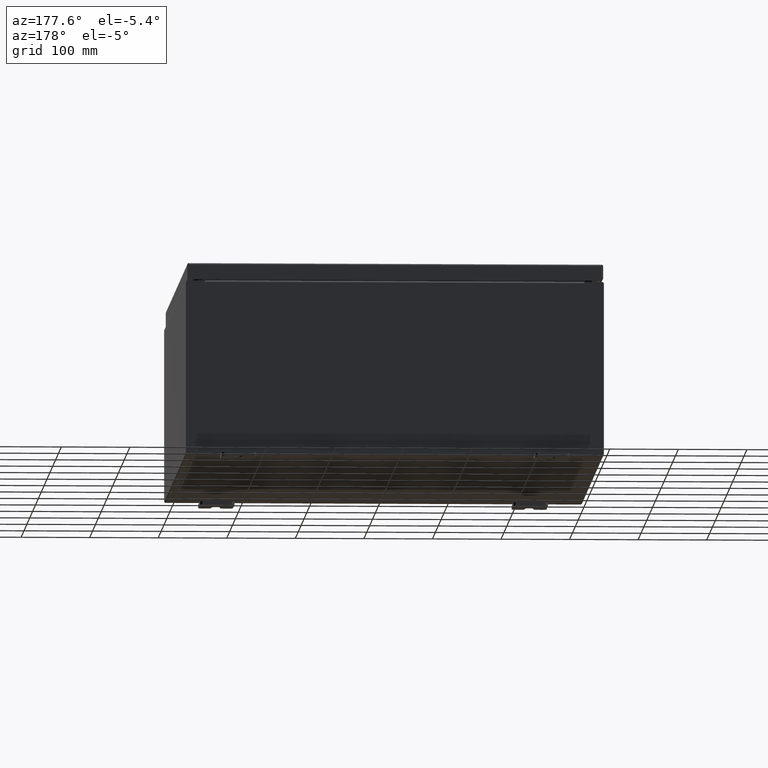
[diagram: clean part render]
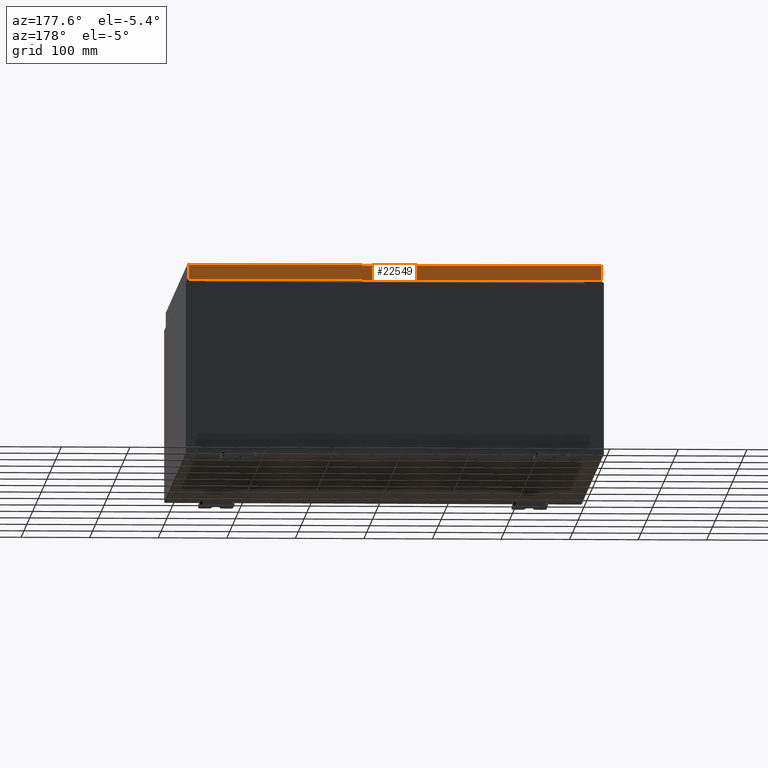
[diagram: same view with one face highlighted and labeled with its STEP entity id]
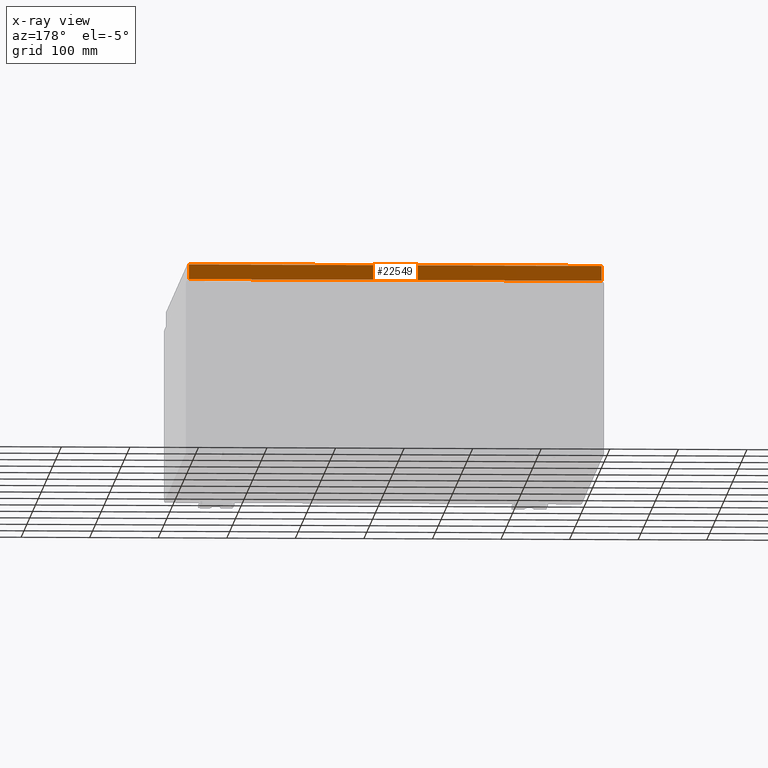
[diagram: x-ray of the same camera — body ghosted, the highlighted face saturated]
A machine part, auxiliary view. The second image highlights one B-rep face of the part: STEP entity #22549.
The next image is the same camera in x-ray: the body ghosted, the highlighted face saturated — about 0% of this face is hidden behind the body in this view.
In plain terms, the highlighted planar face has unit normal (0, -1, -0).
Its self-contained STEP definition (entity closure, byte-faithful):
#1003 = LINE ( 'NONE', #42971, #27459 ) ;
#5301 = DIRECTION ( 'NONE',  ( 0.0000000000000000000, 2.532419924601857400E-015, -1.000000000000000000 ) ) ;
#5815 = ORIENTED_EDGE ( 'NONE', *, *, #53757, .F. ) ;
#6364 = CARTESIAN_POINT ( 'NONE',  ( -11.84865786437626900, 14.93750000000000200, -0.07469999999999980800 ) ) ;
#8735 = VECTOR ( 'NONE', #36221, 39.37007874015748100 ) ;
#10257 = LINE ( 'NONE', #6364, #8735 ) ;
#13382 = DIRECTION ( 'NONE',  ( -1.000000000000000000, -8.693008950959990500E-032, -9.153836209136798400E-017 ) ) ;
#13499 = CARTESIAN_POINT ( 'NONE',  ( 11.84865786437626800, 14.93750000000000400, -0.9376999999999997600 ) ) ;
#14718 = CARTESIAN_POINT ( 'NONE',  ( -11.84865786437626900, 14.93750000000000400, -0.9377000000000028600 ) ) ;
#17852 = VERTEX_POINT ( 'NONE', #51716 ) ;
#18861 = LINE ( 'NONE', #54112, #45123 ) ;
#22549 = ADVANCED_FACE ( 'NONE', ( #55769 ), #52176, .F. ) ;
#22601 = CARTESIAN_POINT ( 'NONE',  ( -4.761233444182044100E-030, 14.93750000000000200, 3.808883627975183000E-014 ) ) ;
#23396 = CARTESIAN_POINT ( 'NONE',  ( -11.84865786437626800, 14.93750000000000200, -0.08769999999999898700 ) ) ;
#24544 = DIRECTION ( 'NONE',  ( 1.000000000000000000, -4.379057701015054300E-047, 1.258652478756310100E-016 ) ) ;
#27459 = VECTOR ( 'NONE', #13382, 39.37007874015748100 ) ;
#30010 = CARTESIAN_POINT ( 'NONE',  ( 11.84865786437626900, 14.93750000000000200, 3.808883627975183000E-014 ) ) ;
#31557 = EDGE_CURVE ( 'NONE', #17852, #50343, #1003, .T. ) ;
#32531 = DIRECTION ( 'NONE',  ( 0.0000000000000000000, 2.532419924601857400E-015, -1.000000000000000000 ) ) ;
#36221 = DIRECTION ( 'NONE',  ( -0.0000000000000000000, 2.532419924601857400E-015, -1.000000000000000000 ) ) ;
#36692 = VECTOR ( 'NONE', #5301, 39.37007874015748100 ) ;
#42611 = AXIS2_PLACEMENT_3D ( 'NONE', #22601, #62147, #32531 ) ;
#42971 = CARTESIAN_POINT ( 'NONE',  ( -11.93750000000000000, 14.93750000000000200, -0.08770000000000008300 ) ) ;
#44113 = ORIENTED_EDGE ( 'NONE', *, *, #52562, .T. ) ;
#45123 = VECTOR ( 'NONE', #24544, 39.37007874015748100 ) ;
#47692 = EDGE_LOOP ( 'NONE', ( #55951, #44113, #5815, #58762 ) ) ;
#50343 = VERTEX_POINT ( 'NONE', #23396 ) ;
#51716 = CARTESIAN_POINT ( 'NONE',  ( 11.84865786437626800, 14.93750000000000200, -0.08769999999999789100 ) ) ;
#52176 = PLANE ( 'NONE',  #42611 ) ;
#52562 = EDGE_CURVE ( 'NONE', #17852, #57475, #63018, .T. ) ;
#53757 = EDGE_CURVE ( 'NONE', #56842, #57475, #18861, .T. ) ;
#54112 = CARTESIAN_POINT ( 'NONE',  ( -11.93750000000000000, 14.93750000000000400, -0.9377000000000028600 ) ) ;
#54614 = EDGE_CURVE ( 'NONE', #50343, #56842, #10257, .T. ) ;
#55769 = FACE_OUTER_BOUND ( 'NONE', #47692, .T. ) ;
#55951 = ORIENTED_EDGE ( 'NONE', *, *, #31557, .F. ) ;
#56842 = VERTEX_POINT ( 'NONE', #14718 ) ;
#57475 = VERTEX_POINT ( 'NONE', #13499 ) ;
#58762 = ORIENTED_EDGE ( 'NONE', *, *, #54614, .F. ) ;
#62147 = DIRECTION ( 'NONE',  ( 3.187436615351995300E-031, -1.000000000000000000, -2.532419924601857400E-015 ) ) ;
#63018 = LINE ( 'NONE', #30010, #36692 ) ;